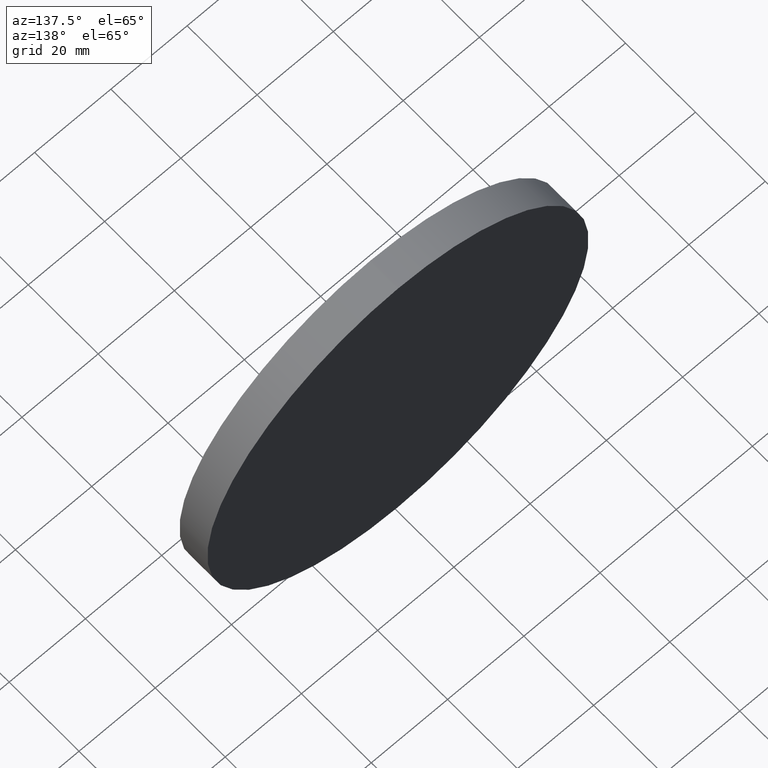
[diagram: clean part render]
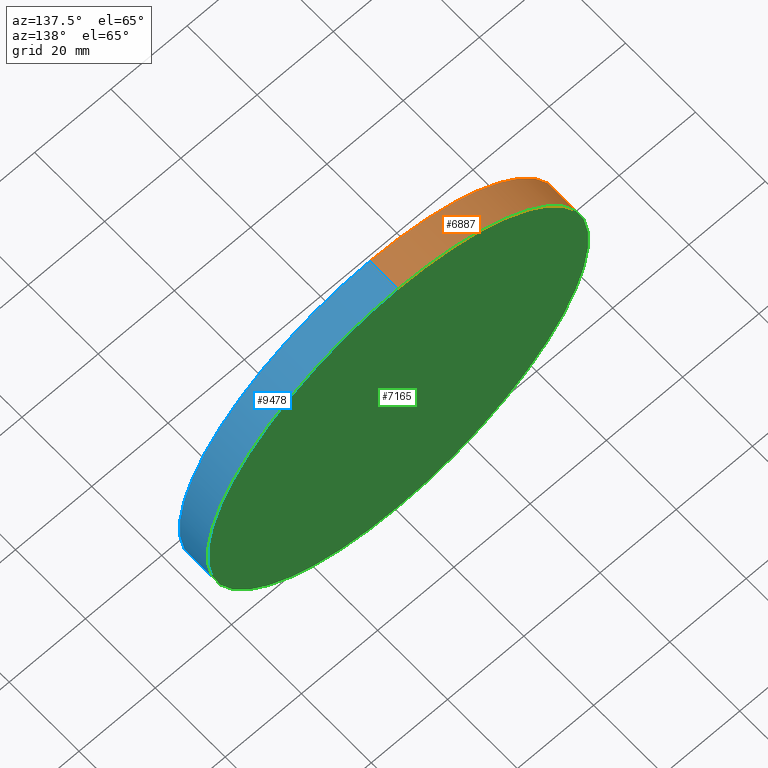
[diagram: same view with three faces highlighted in distinct colors, each labeled with its STEP entity id]
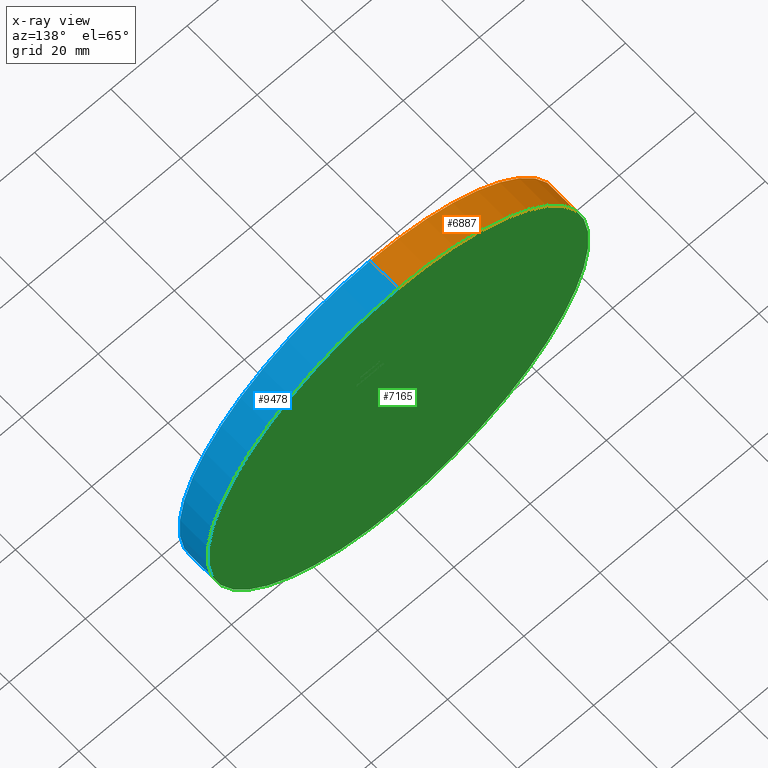
[diagram: x-ray of the same camera — body ghosted, the three highlighted faces saturated]
A machine part, auxiliary view with three faces highlighted in distinct colors.
The next image is the same camera in x-ray (body ghosted, the three faces saturated) — at least one of them is partly hidden behind the body in this view.
Their STEP definitions:

[orange] entity #6887 — the highlighted cylindrical surface (partial cylindrical patch) has radius 50 mm, axis along (-0, -1, -0).
#95 = EDGE_CURVE ( 'NONE', #10050, #8459, #11625, .T. ) ;
#472 = CIRCLE ( 'NONE', #2225, 50.00000000000000000 ) ;
#612 = DIRECTION ( 'NONE',  ( -0.000000000000000000, -1.000000000000000000, -0.000000000000000000 ) ) ;
#924 = AXIS2_PLACEMENT_3D ( 'NONE', #10681, #3469, #4733 ) ;
#1595 = CARTESIAN_POINT ( 'NONE',  ( 6.123233995736766085E-15, -4.000000000000000000, 50.00000000000000000 ) ) ;
#2059 = CARTESIAN_POINT ( 'NONE',  ( 0.000000000000000000, -4.000000000000000000, -50.00000000000000000 ) ) ;
#2072 = EDGE_CURVE ( 'NONE', #4495, #3541, #472, .T. ) ;
#2225 = AXIS2_PLACEMENT_3D ( 'NONE', #5835, #14066, #8110 ) ;
#3469 = DIRECTION ( 'NONE',  ( 0.000000000000000000, 1.000000000000000000, 0.000000000000000000 ) ) ;
#3479 = VECTOR ( 'NONE', #10437, 1000.000000000000000 ) ;
#3541 = VERTEX_POINT ( 'NONE', #1595 ) ;
#4454 = DIRECTION ( 'NONE',  ( -0.000000000000000000, -1.000000000000000000, -0.000000000000000000 ) ) ;
#4495 = VERTEX_POINT ( 'NONE', #2059 ) ;
#4611 = ORIENTED_EDGE ( 'NONE', *, *, #95, .F. ) ;
#4650 = FACE_OUTER_BOUND ( 'NONE', #4764, .T. ) ;
#4733 = DIRECTION ( 'NONE',  ( 0.000000000000000000, 0.000000000000000000, 1.000000000000000000 ) ) ;
#4764 = EDGE_LOOP ( 'NONE', ( #5518, #4611, #8072, #7032 ) ) ;
#5518 = ORIENTED_EDGE ( 'NONE', *, *, #8131, .F. ) ;
#5675 = CARTESIAN_POINT ( 'NONE',  ( 0.000000000000000000, 4.000000000000000000, -50.00000000000000000 ) ) ;
#5835 = CARTESIAN_POINT ( 'NONE',  ( 0.000000000000000000, -4.000000000000000000, 0.000000000000000000 ) ) ;
#6614 = CARTESIAN_POINT ( 'NONE',  ( 0.000000000000000000, 4.000000000000000000, 0.000000000000000000 ) ) ;
#6887 = ADVANCED_FACE ( 'NONE', ( #4650 ), #10665, .T. ) ;
#7032 = ORIENTED_EDGE ( 'NONE', *, *, #2072, .T. ) ;
#7827 = LINE ( 'NONE', #8042, #10445 ) ;
#8042 = CARTESIAN_POINT ( 'NONE',  ( 6.123233995736766085E-15, 4.000000000000000000, 50.00000000000000000 ) ) ;
#8072 = ORIENTED_EDGE ( 'NONE', *, *, #10458, .T. ) ;
#8110 = DIRECTION ( 'NONE',  ( 0.000000000000000000, 0.000000000000000000, 1.000000000000000000 ) ) ;
#8131 = EDGE_CURVE ( 'NONE', #8459, #3541, #7827, .T. ) ;
#8375 = LINE ( 'NONE', #15201, #3479 ) ;
#8459 = VERTEX_POINT ( 'NONE', #14229 ) ;
#8930 = DIRECTION ( 'NONE',  ( 0.000000000000000000, 0.000000000000000000, -1.000000000000000000 ) ) ;
#10050 = VERTEX_POINT ( 'NONE', #5675 ) ;
#10437 = DIRECTION ( 'NONE',  ( -0.000000000000000000, -1.000000000000000000, -0.000000000000000000 ) ) ;
#10445 = VECTOR ( 'NONE', #4454, 1000.000000000000000 ) ;
#10458 = EDGE_CURVE ( 'NONE', #10050, #4495, #8375, .T. ) ;
#10665 = CYLINDRICAL_SURFACE ( 'NONE', #13533, 50.00000000000000000 ) ;
#10681 = CARTESIAN_POINT ( 'NONE',  ( 0.000000000000000000, 4.000000000000000000, 0.000000000000000000 ) ) ;
#11625 = CIRCLE ( 'NONE', #924, 50.00000000000000000 ) ;
#13533 = AXIS2_PLACEMENT_3D ( 'NONE', #6614, #612, #8930 ) ;
#14066 = DIRECTION ( 'NONE',  ( 0.000000000000000000, 1.000000000000000000, 0.000000000000000000 ) ) ;
#14229 = CARTESIAN_POINT ( 'NONE',  ( 6.123233995736766085E-15, 4.000000000000000000, 50.00000000000000000 ) ) ;
#15201 = CARTESIAN_POINT ( 'NONE',  ( 0.000000000000000000, 4.000000000000000000, -50.00000000000000000 ) ) ;

[blue] entity #9478 — the highlighted cylindrical surface (partial cylindrical patch) has radius 50 mm, axis along (-0, -1, -0).
#883 = ORIENTED_EDGE ( 'NONE', *, *, #10538, .F. ) ;
#1595 = CARTESIAN_POINT ( 'NONE',  ( 6.123233995736766085E-15, -4.000000000000000000, 50.00000000000000000 ) ) ;
#1934 = EDGE_CURVE ( 'NONE', #3541, #4495, #12690, .T. ) ;
#2059 = CARTESIAN_POINT ( 'NONE',  ( 0.000000000000000000, -4.000000000000000000, -50.00000000000000000 ) ) ;
#2369 = AXIS2_PLACEMENT_3D ( 'NONE', #11238, #4030, #12378 ) ;
#3097 = CYLINDRICAL_SURFACE ( 'NONE', #2369, 50.00000000000000000 ) ;
#3479 = VECTOR ( 'NONE', #10437, 1000.000000000000000 ) ;
#3541 = VERTEX_POINT ( 'NONE', #1595 ) ;
#3761 = AXIS2_PLACEMENT_3D ( 'NONE', #4089, #7742, #4038 ) ;
#4030 = DIRECTION ( 'NONE',  ( -0.000000000000000000, -1.000000000000000000, -0.000000000000000000 ) ) ;
#4038 = DIRECTION ( 'NONE',  ( 0.000000000000000000, 0.000000000000000000, 1.000000000000000000 ) ) ;
#4089 = CARTESIAN_POINT ( 'NONE',  ( 0.000000000000000000, -4.000000000000000000, 0.000000000000000000 ) ) ;
#4454 = DIRECTION ( 'NONE',  ( -0.000000000000000000, -1.000000000000000000, -0.000000000000000000 ) ) ;
#4495 = VERTEX_POINT ( 'NONE', #2059 ) ;
#4959 = CARTESIAN_POINT ( 'NONE',  ( 0.000000000000000000, 4.000000000000000000, 0.000000000000000000 ) ) ;
#5675 = CARTESIAN_POINT ( 'NONE',  ( 0.000000000000000000, 4.000000000000000000, -50.00000000000000000 ) ) ;
#5731 = FACE_OUTER_BOUND ( 'NONE', #14065, .T. ) ;
#7399 = DIRECTION ( 'NONE',  ( 0.000000000000000000, 0.000000000000000000, 1.000000000000000000 ) ) ;
#7742 = DIRECTION ( 'NONE',  ( 0.000000000000000000, 1.000000000000000000, 0.000000000000000000 ) ) ;
#7827 = LINE ( 'NONE', #8042, #10445 ) ;
#8042 = CARTESIAN_POINT ( 'NONE',  ( 6.123233995736766085E-15, 4.000000000000000000, 50.00000000000000000 ) ) ;
#8131 = EDGE_CURVE ( 'NONE', #8459, #3541, #7827, .T. ) ;
#8375 = LINE ( 'NONE', #15201, #3479 ) ;
#8459 = VERTEX_POINT ( 'NONE', #14229 ) ;
#9231 = ORIENTED_EDGE ( 'NONE', *, *, #1934, .T. ) ;
#9478 = ADVANCED_FACE ( 'NONE', ( #5731 ), #3097, .T. ) ;
#10050 = VERTEX_POINT ( 'NONE', #5675 ) ;
#10129 = AXIS2_PLACEMENT_3D ( 'NONE', #4959, #10854, #7399 ) ;
#10437 = DIRECTION ( 'NONE',  ( -0.000000000000000000, -1.000000000000000000, -0.000000000000000000 ) ) ;
#10445 = VECTOR ( 'NONE', #4454, 1000.000000000000000 ) ;
#10458 = EDGE_CURVE ( 'NONE', #10050, #4495, #8375, .T. ) ;
#10538 = EDGE_CURVE ( 'NONE', #8459, #10050, #13991, .T. ) ;
#10854 = DIRECTION ( 'NONE',  ( 0.000000000000000000, 1.000000000000000000, 0.000000000000000000 ) ) ;
#11238 = CARTESIAN_POINT ( 'NONE',  ( 0.000000000000000000, 4.000000000000000000, 0.000000000000000000 ) ) ;
#11380 = ORIENTED_EDGE ( 'NONE', *, *, #8131, .T. ) ;
#12378 = DIRECTION ( 'NONE',  ( 0.000000000000000000, 0.000000000000000000, -1.000000000000000000 ) ) ;
#12646 = ORIENTED_EDGE ( 'NONE', *, *, #10458, .F. ) ;
#12690 = CIRCLE ( 'NONE', #3761, 50.00000000000000000 ) ;
#13991 = CIRCLE ( 'NONE', #10129, 50.00000000000000000 ) ;
#14065 = EDGE_LOOP ( 'NONE', ( #883, #11380, #9231, #12646 ) ) ;
#14229 = CARTESIAN_POINT ( 'NONE',  ( 6.123233995736766085E-15, 4.000000000000000000, 50.00000000000000000 ) ) ;
#15201 = CARTESIAN_POINT ( 'NONE',  ( 0.000000000000000000, 4.000000000000000000, -50.00000000000000000 ) ) ;

[green] entity #7165 — the highlighted planar face has unit normal (0, 1, 0).
#95 = EDGE_CURVE ( 'NONE', #10050, #8459, #11625, .T. ) ;
#666 = EDGE_LOOP ( 'NONE', ( #5369, #11907 ) ) ;
#924 = AXIS2_PLACEMENT_3D ( 'NONE', #10681, #3469, #4733 ) ;
#1704 = DIRECTION ( 'NONE',  ( 0.000000000000000000, -0.000000000000000000, 1.000000000000000000 ) ) ;
#3469 = DIRECTION ( 'NONE',  ( 0.000000000000000000, 1.000000000000000000, 0.000000000000000000 ) ) ;
#4733 = DIRECTION ( 'NONE',  ( 0.000000000000000000, 0.000000000000000000, 1.000000000000000000 ) ) ;
#4959 = CARTESIAN_POINT ( 'NONE',  ( 0.000000000000000000, 4.000000000000000000, 0.000000000000000000 ) ) ;
#5369 = ORIENTED_EDGE ( 'NONE', *, *, #95, .T. ) ;
#5675 = CARTESIAN_POINT ( 'NONE',  ( 0.000000000000000000, 4.000000000000000000, -50.00000000000000000 ) ) ;
#7165 = ADVANCED_FACE ( 'NONE', ( #15508 ), #8620, .T. ) ;
#7399 = DIRECTION ( 'NONE',  ( 0.000000000000000000, 0.000000000000000000, 1.000000000000000000 ) ) ;
#8459 = VERTEX_POINT ( 'NONE', #14229 ) ;
#8620 = PLANE ( 'NONE',  #11129 ) ;
#9712 = DIRECTION ( 'NONE',  ( 0.000000000000000000, 1.000000000000000000, 0.000000000000000000 ) ) ;
#10050 = VERTEX_POINT ( 'NONE', #5675 ) ;
#10129 = AXIS2_PLACEMENT_3D ( 'NONE', #4959, #10854, #7399 ) ;
#10538 = EDGE_CURVE ( 'NONE', #8459, #10050, #13991, .T. ) ;
#10681 = CARTESIAN_POINT ( 'NONE',  ( 0.000000000000000000, 4.000000000000000000, 0.000000000000000000 ) ) ;
#10854 = DIRECTION ( 'NONE',  ( 0.000000000000000000, 1.000000000000000000, 0.000000000000000000 ) ) ;
#11129 = AXIS2_PLACEMENT_3D ( 'NONE', #13432, #9712, #1704 ) ;
#11625 = CIRCLE ( 'NONE', #924, 50.00000000000000000 ) ;
#11907 = ORIENTED_EDGE ( 'NONE', *, *, #10538, .T. ) ;
#13432 = CARTESIAN_POINT ( 'NONE',  ( 0.000000000000000000, 4.000000000000000000, 0.000000000000000000 ) ) ;
#13991 = CIRCLE ( 'NONE', #10129, 50.00000000000000000 ) ;
#14229 = CARTESIAN_POINT ( 'NONE',  ( 6.123233995736766085E-15, 4.000000000000000000, 50.00000000000000000 ) ) ;
#15508 = FACE_OUTER_BOUND ( 'NONE', #666, .T. ) ;